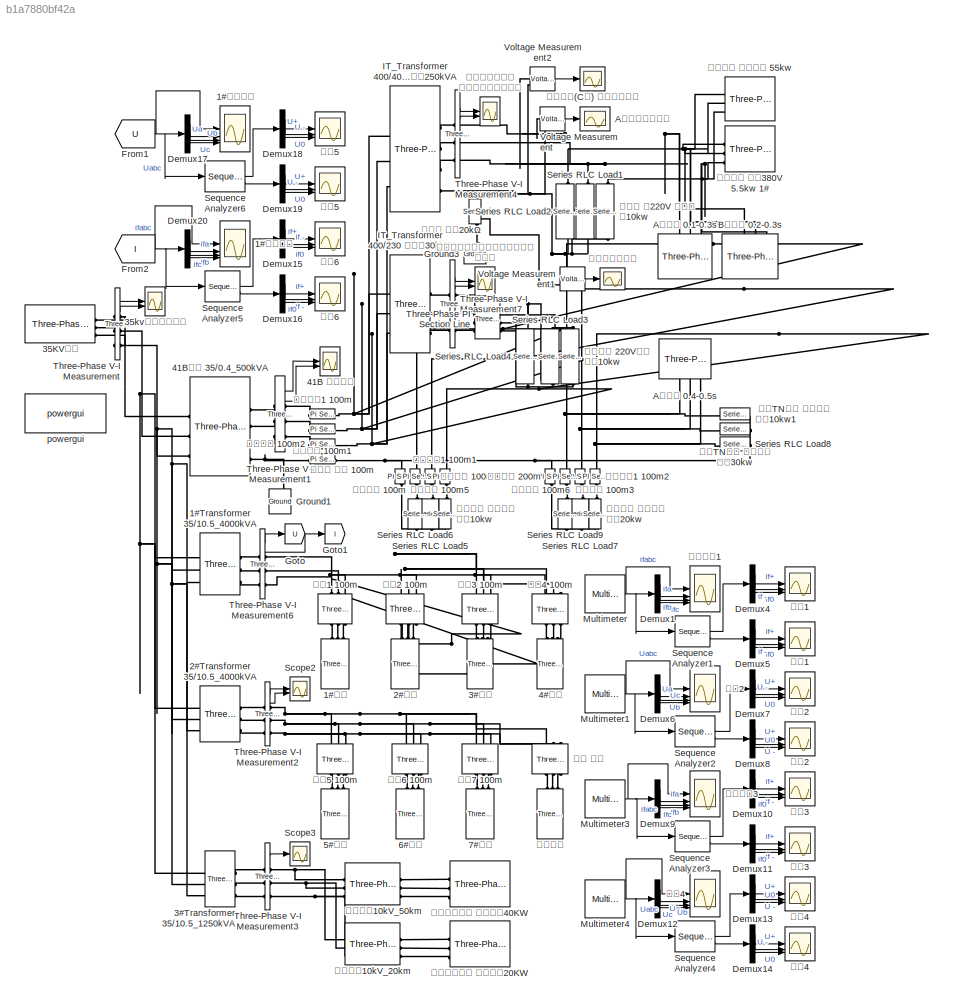
MODEL slx_b1a7880bf42a
KIND model
CONFIG AbsTol = auto
CONFIG EnableMultiTasking = off
CONFIG FixedStep = 50e-6
CONFIG MaxStep = auto
CONFIG MinStep = auto
CONFIG RelTol = 1e-3
CONFIG SampleTimeConstraint = Unconstrained
CONFIG SolverName = FixedStepAuto
CONFIG StartTime = 0.0
CONFIG StopTime = 0.55
BLOCK [Reference]     厂房TN系统 等效负载 单相10kw1  REF=spsSeriesRLCLoadLib/Series RLC Load
  AttributesFormatString = \n
  LibrarySourceBlock = sps_lib/Passives/Series RLC Load
  NameLocation = right
  SourceBlock = spsSeriesRLCLoadLib/Series RLC Load
  SourceType = Series RLC Load
BLOCK [Reference]     厂房TN系统 等效负载 单相30kw  REF=spsSeriesRLCLoadLib/Series RLC Load
  AttributesFormatString = \n
  LibrarySourceBlock = sps_lib/Passives/Series RLC Load
  NameLocation = right
  SourceBlock = spsSeriesRLCLoadLib/Series RLC Load
  SourceType = Series RLC Load
BLOCK [Reference] 1#Transformer 35//10.5_4000kVA  REF=spsThreePhaseTransformerTwoWindingsLib/Three-Phase
Transformer
(Two Windings)
  SourceBlock = spsThreePhaseTransformerTwoWindingsLib/Three-Phase\nTransformer\n(Two Windings)
  SourceType = Three-Phase Transformer (Two Windings)
BLOCK [Scope] 1#主变电压
  ActiveDisplayYMaximum = 10885.75905010345
  ActiveDisplayYMinimum = -10885.8844835699
  ContainerLayout = {"WindowBounds":[1851,25,922,1867],"gridDimensions":{"w":1,"h":4},"tileCount":4,"tileCoverage":[1,2,3,4],"columnWeights":1,"rowWeights":[0.25,0.24947916666666667,0.25,0.25052083333333336],"tileOccupancy":[{"children":{"id":"/星方式变压器处\n相间电压和电流波形"}},{"children":{"id":"/相方式电压电流"}},{"children":{"id":"/41B\n电压电流"}},{"children":{"id":"/35kv母线电压电流"}}]}  <repeated x14 — deduplicated; at blocks: 1#主变电压, 1#主变电流, A相对中性线电压, Scope3, 中性线对地电压, 幅值2, 幅值5, 幅值6, 故障电流1, 电压2, 相角2, 相角5, 相角6, 非故障相(C相) 对中性线电压>
  DataLoggingVariableName = ScopeData1
  Floating = off
  GraphicalSettings = {"Style":{"BackgroundColor":[0.12941176470588237,0.12941176470588237,0.12941176470588237],"AxesColor":[0.07058823529411765,0.07058823529411765,0.07058823529411765],"LabelsColor":[0.8509803921568627,0.8509803921568627,0.8509803921568627],"PreserveColors":false,"Visible":[true,true,true,true,true,true],"LineStyle":["-","-","-","-","-","-"],"LineWidth":[1.5,1.5,1.5,1.5,1.5,1.5],"BarWidth":[0.9,0.9,0....<+3454ch>
  LayoutDimensionsString = [4, 1]
  MultipleDisplayCache = [{"MaxYLimMag":10885.8844835699,"MaxYLimReal":10885.75905010345,"MinYLimMag":0,"MinYLimReal":-10885.8844835699,"PlotAsMagnitudePhase":false,"ShowGrid":true,"ShowLegend":true,"Title":"%<SignalLabel>","YLabel":""},{"MaxYLimMag":10885.743320815942,"MaxYLimReal":10885.743320815942,"MinYLimMag":0,"MinYLimReal":-10885.742919982329,"PlotAsMagnitudePhase":false,"ShowGrid":true,"ShowLegend":true,"Title":"%...<+460ch>
  NameLocation = top
  NumInputPorts = 4
  ScopeFrameLocation = container
  ShowLegend = on
  WasSavedAsWebScope = on
  WindowPosition = [1145.000000,366.000000,2039.000000,1348.000000,]
BLOCK [Scope] 1#主变电流
  ActiveDisplayYMaximum = 290.20954287182195
  ActiveDisplayYMinimum = -290.20750490903231
  Floating = off
  GraphicalSettings = {"Style":{"BackgroundColor":[0.12941176470588237,0.12941176470588237,0.12941176470588237],"AxesColor":[0.07058823529411765,0.07058823529411765,0.07058823529411765],"LabelsColor":[0.8509803921568627,0.8509803921568627,0.8509803921568627],"PreserveColors":false,"Visible":[true,true,true,true,true,true],"LineStyle":["-","-","-","-","-","-"],"LineWidth":[1.5,1.5,1.5,1.5,1.5,1.5],"BarWidth":[0.9,0.9,0....<+3455ch>
  LayoutDimensionsString = [4, 1]
  MultipleDisplayCache = [{"MaxYLimMag":290.20954287182195,"MaxYLimReal":290.20954287182195,"MinYLimMag":0,"MinYLimReal":-290.20750490903231,"PlotAsMagnitudePhase":false,"ShowGrid":true,"ShowLegend":true,"Title":"%<SignalLabel>","YLabel":""},{"MaxYLimMag":290.199839306447,"MaxYLimReal":290.19951035315978,"MinYLimMag":0,"MinYLimReal":-290.199839306447,"PlotAsMagnitudePhase":false,"ShowGrid":true,"ShowLegend":true,"Title":"...<+461ch>
  NameLocation = top
  NumInputPorts = 4
  ScopeFrameLocation = container
  ShowLegend = on
  WasSavedAsWebScope = on
  WindowPosition = [1145.000000,366.000000,2039.000000,1348.000000,]
BLOCK [Reference] 1#机组  REF=spsThreePhaseSeriesRLCLoadLib/Three-Phase
Series RLC Load
  AttributesFormatString = \n
  SourceBlock = spsThreePhaseSeriesRLCLoadLib/Three-Phase\nSeries RLC Load
  SourceType = Three-Phase Series RLC Load
BLOCK [Reference] 2#Transformer 35//10.5_4000kVA  REF=spsThreePhaseTransformerTwoWindingsLib/Three-Phase
Transformer
(Two Windings)
  SourceBlock = spsThreePhaseTransformerTwoWindingsLib/Three-Phase\nTransformer\n(Two Windings)
  SourceType = Three-Phase Transformer (Two Windings)
BLOCK [Reference] 2#机组  REF=spsThreePhaseSeriesRLCLoadLib/Three-Phase
Series RLC Load
  AttributesFormatString = \n
  SourceBlock = spsThreePhaseSeriesRLCLoadLib/Three-Phase\nSeries RLC Load
  SourceType = Three-Phase Series RLC Load
BLOCK [Reference] 3#Transformer 35//10.5_1250kVA  REF=spsThreePhaseTransformerTwoWindingsLib/Three-Phase
Transformer
(Two Windings)
  SourceBlock = spsThreePhaseTransformerTwoWindingsLib/Three-Phase\nTransformer\n(Two Windings)
  SourceType = Three-Phase Transformer (Two Windings)
BLOCK [Reference] 3#机组  REF=spsThreePhaseSeriesRLCLoadLib/Three-Phase
Series RLC Load
  AttributesFormatString = \n
  SourceBlock = spsThreePhaseSeriesRLCLoadLib/Three-Phase\nSeries RLC Load
  SourceType = Three-Phase Series RLC Load
BLOCK [Reference] 35KV电源  REF=spsThreePhaseSourceLib/Three-Phase Source
  SourceBlock = spsThreePhaseSourceLib/Three-Phase Source
  SourceType = Three-Phase Source
BLOCK [Scope] 35kv母线电压电流
  ActiveDisplayYMaximum = 35707.041687054967
  ActiveDisplayYMinimum = -35706.846494267083
  ContainerLayout = {"WindowBounds":[1557,106,1948,1863],"gridDimensions":{"w":3,"h":2},"tileCount":6,"tileCoverage":[[1,2,3],[4,5,6]],"columnWeights":[0.33333333333333331,0.33333333333333331,0.33333333333333331],"rowWeights":[0.5,0.5],"tileOccupancy":[{"children":{"id":"/故障电流3"}},{"children":{"id":"/幅值3"}},{"children":{"id":"/相角3"}},{"children":{"id":"/电压4"}},{"children":{"id":"/幅值4"}},{"children":[{"id":"/相角4"},{"i...<+14ch>  <repeated x12 — deduplicated; at blocks: 35kv母线电压电流, 41B 电压电流, 幅值1, 幅值3, 幅值4, 故障电流3, 星方式变压器处 相间电压和电流波形, 电压4, 相方式变压器处相对地电压和电流波形, 相角1, 相角3, 相角4>
  DataLoggingVariableName = ScopeData6
  Floating = off
  GraphicalSettings = {"Style":{"BackgroundColor":[0.12941176470588237,0.12941176470588237,0.12941176470588237],"AxesColor":[0.07058823529411765,0.07058823529411765,0.07058823529411765],"LabelsColor":[0.8509803921568627,0.8509803921568627,0.8509803921568627],"PreserveColors":false,"Visible":[true,true,true,true,true,true],"LineStyle":["-","-","-","-","-","-"],"LineWidth":[1.5,1.5,1.5,1.5,1.5,1.5],"BarWidth":[0.9,0.9,0....<+3007ch>
  LayoutDimensionsString = [2, 1]
  MultipleDisplayCache = [{"MaxYLimMag":35707.041687054967,"MaxYLimReal":35707.041687054967,"MinYLimMag":0,"MinYLimReal":-35706.846494267083,"PlotAsMagnitudePhase":false,"ShowGrid":true,"ShowLegend":false,"Title":"%<SignalLabel>","YLabel":""},{"MaxYLimMag":217.316647966304,"MaxYLimReal":217.316647966304,"MinYLimMag":0,"MinYLimReal":-201.72874583244709,"PlotAsMagnitudePhase":false,"ShowGrid":true,"ShowLegend":false,"Title"...<+31ch>
  NumInputPorts = 2
  ScopeFrameLocation = container
  WasSavedAsWebScope = on
  WindowPosition = [1851.000000,186.000000,1039.000000,1922.000000,]
BLOCK [Reference] 4#机组  REF=spsThreePhaseSeriesRLCLoadLib/Three-Phase
Series RLC Load
  AttributesFormatString = \n
  SourceBlock = spsThreePhaseSeriesRLCLoadLib/Three-Phase\nSeries RLC Load
  SourceType = Three-Phase Series RLC Load
BLOCK [Scope] 41B 电压电流
  ActiveDisplayYMaximum = 693.42851734573628
  ActiveDisplayYMinimum = -693.505234778138
  DataLoggingVariableName = ScopeData2
  Floating = off
  GraphicalSettings = {"Style":{"BackgroundColor":[0.12941176470588237,0.12941176470588237,0.12941176470588237],"AxesColor":[0.07058823529411765,0.07058823529411765,0.07058823529411765],"LabelsColor":[0.8509803921568627,0.8509803921568627,0.8509803921568627],"PreserveColors":false,"Visible":[true,true,true,true,true,true],"LineStyle":["-","-","-","-","-","-"],"LineWidth":[1.5,1.5,1.5,1.5,1.5,1.5],"BarWidth":[0.9,0.9,0....<+3014ch>
  LayoutDimensionsString = [2, 1]
  MultipleDisplayCache = [{"MaxYLimMag":693.505234778138,"MaxYLimReal":693.42851734573628,"MinYLimMag":0,"MinYLimReal":-693.505234778138,"PlotAsMagnitudePhase":false,"ShowGrid":true,"ShowLegend":true,"Title":"%<SignalLabel>","YLabel":""},{"MaxYLimMag":8410.7812594967127,"MaxYLimReal":8410.7812594967127,"MinYLimMag":0,"MinYLimReal":-6603.978936766599,"PlotAsMagnitudePhase":false,"ShowGrid":true,"ShowLegend":true,"Title":"%...<+28ch>
  NumInputPorts = 2
  ScopeFrameLocation = container
  ShowLegend = on
  WasSavedAsWebScope = on
  WindowPosition = [1851.000000,186.000000,1039.000000,1922.000000,]
BLOCK [Reference] 41B所变 35//0.4_500kVA  REF=spsThreePhaseTransformerTwoWindingsLib/Three-Phase
Transformer
(Two Windings)
  SourceBlock = spsThreePhaseTransformerTwoWindingsLib/Three-Phase\nTransformer\n(Two Windings)
  SourceType = Three-Phase Transformer (Two Windings)
BLOCK [Reference] 5#机组  REF=spsThreePhaseSeriesRLCLoadLib/Three-Phase
Series RLC Load
  AttributesFormatString = \n
  SourceBlock = spsThreePhaseSeriesRLCLoadLib/Three-Phase\nSeries RLC Load
  SourceType = Three-Phase Series RLC Load
BLOCK [Reference] 6#机组  REF=spsThreePhaseSeriesRLCLoadLib/Three-Phase
Series RLC Load
  AttributesFormatString = \n
  SourceBlock = spsThreePhaseSeriesRLCLoadLib/Three-Phase\nSeries RLC Load
  SourceType = Three-Phase Series RLC Load
BLOCK [Reference] 7#机组  REF=spsThreePhaseSeriesRLCLoadLib/Three-Phase
Series RLC Load
  AttributesFormatString = \n
  SourceBlock = spsThreePhaseSeriesRLCLoadLib/Three-Phase\nSeries RLC Load
  SourceType = Three-Phase Series RLC Load
BLOCK [Scope] A相对中性线电压
  ActiveDisplayYMaximum = 1
  ActiveDisplayYMinimum = -1
  DataLoggingVariableName = ScopeData7
  Floating = off
  GraphicalSettings = {"Style":{"BackgroundColor":[0.12941176470588237,0.12941176470588237,0.12941176470588237],"AxesColor":[0.07058823529411765,0.07058823529411765,0.07058823529411765],"LabelsColor":[0.8509803921568627,0.8509803921568627,0.8509803921568627],"PreserveColors":false,"Visible":[true],"LineStyle":["-"],"LineWidth":[1.5],"BarWidth":[0.9],"LineColor":["auto"],"LineFaceAlpha":[1],"LineEdgeAlpha":[1],"Marker":...<+1901ch>
  MultipleDisplayCache = [{"MaxYLimMag":1,"MaxYLimReal":1,"MinYLimMag":0,"MinYLimReal":-1,"PlotAsMagnitudePhase":false,"ShowGrid":true,"ShowLegend":false,"Title":"%<SignalLabel>","YLabel":""}]
  NameLocation = top
  NumInputPorts = 1
  ScopeFrameLocation = container
  WasSavedAsWebScope = on
  WindowPosition = [1747.000000,378.000000,1583.000000,1348.000000,]
BLOCK [Reference] A相接地 0.1-0.3s  REF=spsThreePhaseFaultLib/Three-Phase Fault
  SourceBlock = spsThreePhaseFaultLib/Three-Phase Fault
  SourceType = Three-Phase Fault
BLOCK [Reference] A相接地 0.4-0.5s  REF=spsThreePhaseFaultLib/Three-Phase Fault
  NameLocation = right
  SourceBlock = spsThreePhaseFaultLib/Three-Phase Fault
  SourceType = Three-Phase Fault
BLOCK [Reference] B相接地 0.2-0.3s  REF=spsThreePhaseFaultLib/Three-Phase Fault
  SourceBlock = spsThreePhaseFaultLib/Three-Phase Fault
  SourceType = Three-Phase Fault
BLOCK [Demux] Demux1
  Outputs = 3
BLOCK [Demux] Demux10
  Outputs = 3
BLOCK [Demux] Demux11
  Outputs = 3
BLOCK [Demux] Demux12
  Outputs = 3
BLOCK [Demux] Demux13
  Outputs = 3
BLOCK [Demux] Demux14
  Outputs = 3
BLOCK [Demux] Demux15
  Outputs = 3
BLOCK [Demux] Demux16
  Outputs = 3
BLOCK [Demux] Demux17
  Outputs = 3
BLOCK [Demux] Demux18
  Outputs = 3
BLOCK [Demux] Demux19
  Outputs = 3
BLOCK [Demux] Demux20
  Outputs = 3
BLOCK [Demux] Demux4
  Outputs = 3
BLOCK [Demux] Demux5
  Outputs = 3
BLOCK [Demux] Demux6
  Outputs = 3
BLOCK [Demux] Demux7
  Outputs = 3
BLOCK [Demux] Demux8
  Outputs = 3
BLOCK [Demux] Demux9
  Outputs = 3
BLOCK [From] From1
  GotoTag = U
BLOCK [From] From2
  GotoTag = I
BLOCK [Goto] Goto
  GotoTag = U
BLOCK [Goto] Goto1
  GotoTag = I
BLOCK [Reference] Ground1  REF=spsGroundLib/Ground
  LibrarySourceBlock = sps_lib/Utilities/Ground
  NameLocation = right
  SourceBlock = spsGroundLib/Ground
  SourceType = Ground
BLOCK [Reference] Ground3  REF=spsGroundLib/Ground
  LibrarySourceBlock = sps_lib/Utilities/Ground
  NameLocation = right
  SourceBlock = spsGroundLib/Ground
  SourceType = Ground
BLOCK [Reference] IT_Transformer 400//230 相方式30kVA  REF=spsThreePhaseTransformerTwoWindingsLib/Three-Phase
Transformer
(Two Windings)
  SourceBlock = spsThreePhaseTransformerTwoWindingsLib/Three-Phase\nTransformer\n(Two Windings)
  SourceType = Three-Phase Transformer (Two Windings)
BLOCK [Reference] IT_Transformer 400//400 星方式250kVA  REF=spsThreePhaseTransformerTwoWindingsLib/Three-Phase
Transformer
(Two Windings)
  SourceBlock = spsThreePhaseTransformerTwoWindingsLib/Three-Phase\nTransformer\n(Two Windings)
  SourceType = Three-Phase Transformer (Two Windings)
BLOCK [Reference] Multimeter  REF=spsMultimeterLib/Multimeter
  LibrarySourceBlock = sps_lib/Sensors and Measurements/Multimeter
  SourceBlock = spsMultimeterLib/Multimeter
  SourceType = Multimeter
BLOCK [Reference] Multimeter1  REF=spsMultimeterLib/Multimeter
  LibrarySourceBlock = sps_lib/Sensors and Measurements/Multimeter
  SourceBlock = spsMultimeterLib/Multimeter
  SourceType = Multimeter
BLOCK [Reference] Multimeter3  REF=spsMultimeterLib/Multimeter
  LibrarySourceBlock = sps_lib/Sensors and Measurements/Multimeter
  SourceBlock = spsMultimeterLib/Multimeter
  SourceType = Multimeter
BLOCK [Reference] Multimeter4  REF=spsMultimeterLib/Multimeter
  LibrarySourceBlock = sps_lib/Sensors and Measurements/Multimeter
  SourceBlock = spsMultimeterLib/Multimeter
  SourceType = Multimeter
BLOCK [Scope] Scope2
  ActiveDisplayYMaximum = 10885.759050087665
  ActiveDisplayYMinimum = -10885.884483600445
  DataLoggingVariableName = ScopeData4
  Floating = off
  GraphicalSettings = {"Style":{"BackgroundColor":[0.12941176470588237,0.12941176470588237,0.12941176470588237],"AxesColor":[0.07058823529411765,0.07058823529411765,0.07058823529411765],"LabelsColor":[0.8509803921568627,0.8509803921568627,0.8509803921568627],"PreserveColors":false,"Visible":[true,true,true,true,true,true],"LineStyle":["-","-","-","-","-","-"],"LineWidth":[1.5,1.5,1.5,1.5,1.5,1.5],"BarWidth":[0.9,0.9,0....<+2872ch>
  LayoutDimensionsString = [2, 1]
  MultipleDisplayCache = [{"MaxYLimMag":10885.884483600445,"MaxYLimReal":10885.759050087665,"MinYLimMag":0,"MinYLimReal":-10885.884483600445,"PlotAsMagnitudePhase":false,"ShowGrid":true,"ShowLegend":false,"Title":"%<SignalLabel>","YLabel":""},{"MaxYLimMag":290.2095428718269,"MaxYLimReal":290.2095428718269,"MinYLimMag":0,"MinYLimReal":-290.207504909037,"PlotAsMagnitudePhase":false,"ShowGrid":true,"ShowLegend":false,"Title"...<+31ch>
  NumInputPorts = 2
  ScopeFrameLocation = window
  WasSavedAsWebScope = on
  WindowPosition = [680.000000,330.000000,2386.000000,1433.000000,]
BLOCK [Scope] Scope3
  ActiveDisplayYMaximum = 10726.597579018544
  ActiveDisplayYMinimum = -10727.159391884898
  DataLoggingVariableName = ScopeData5
  Floating = off
  GraphicalSettings = {"Style":{"BackgroundColor":[0.12941176470588237,0.12941176470588237,0.12941176470588237],"AxesColor":[0.07058823529411765,0.07058823529411765,0.07058823529411765],"LabelsColor":[0.8509803921568627,0.8509803921568627,0.8509803921568627],"PreserveColors":false,"Visible":[true,true,true],"LineStyle":["-","-","-"],"LineWidth":[1.5,1.5,1.5],"BarWidth":[0.9,0.9,0.9],"LineColor":["auto","auto","auto"],"...<+2275ch>
  MultipleDisplayCache = [{"MaxYLimMag":10727.159391884898,"MaxYLimReal":10726.597579018544,"MinYLimMag":0,"MinYLimReal":-10727.159391884898,"PlotAsMagnitudePhase":false,"ShowGrid":true,"ShowLegend":false,"Title":"%<SignalLabel>","YLabel":""}]
  NumInputPorts = 1
  ScopeFrameLocation = container
  WasSavedAsWebScope = on
  WindowPosition = [447 510 1862 420]
BLOCK [Reference] Sequence Analyzer1  REF=spsSequenceAnalyzerLib/Sequence Analyzer
  LibrarySourceBlock = sps_lib/Sensors and Measurements/Sequence Analyzer
  SourceBlock = spsSequenceAnalyzerLib/Sequence Analyzer
  SourceType = Sequence Analyzer
BLOCK [Reference] Sequence Analyzer2  REF=spsSequenceAnalyzerLib/Sequence Analyzer
  LibrarySourceBlock = sps_lib/Sensors and Measurements/Sequence Analyzer
  SourceBlock = spsSequenceAnalyzerLib/Sequence Analyzer
  SourceType = Sequence Analyzer
BLOCK [Reference] Sequence Analyzer3  REF=spsSequenceAnalyzerLib/Sequence Analyzer
  LibrarySourceBlock = sps_lib/Sensors and Measurements/Sequence Analyzer
  SourceBlock = spsSequenceAnalyzerLib/Sequence Analyzer
  SourceType = Sequence Analyzer
BLOCK [Reference] Sequence Analyzer4  REF=spsSequenceAnalyzerLib/Sequence Analyzer
  LibrarySourceBlock = sps_lib/Sensors and Measurements/Sequence Analyzer
  SourceBlock = spsSequenceAnalyzerLib/Sequence Analyzer
  SourceType = Sequence Analyzer
BLOCK [Reference] Sequence Analyzer5  REF=spsSequenceAnalyzerLib/Sequence Analyzer
  LibrarySourceBlock = sps_lib/Sensors and Measurements/Sequence Analyzer
  SourceBlock = spsSequenceAnalyzerLib/Sequence Analyzer
  SourceType = Sequence Analyzer
BLOCK [Reference] Sequence Analyzer6  REF=spsSequenceAnalyzerLib/Sequence Analyzer
  LibrarySourceBlock = sps_lib/Sensors and Measurements/Sequence Analyzer
  SourceBlock = spsSequenceAnalyzerLib/Sequence Analyzer
  SourceType = Sequence Analyzer
BLOCK [Reference] Series RLC Load1  REF=spsSeriesRLCLoadLib/Series RLC Load
  AttributesFormatString = \n
  LibrarySourceBlock = sps_lib/Passives/Series RLC Load
  NameLocation = left
  SourceBlock = spsSeriesRLCLoadLib/Series RLC Load
  SourceType = Series RLC Load
BLOCK [Reference] Series RLC Load2  REF=spsSeriesRLCLoadLib/Series RLC Load
  AttributesFormatString = \n
  LibrarySourceBlock = sps_lib/Passives/Series RLC Load
  NameLocation = left
  SourceBlock = spsSeriesRLCLoadLib/Series RLC Load
  SourceType = Series RLC Load
BLOCK [Reference] Series RLC Load3  REF=spsSeriesRLCLoadLib/Series RLC Load
  AttributesFormatString = \n
  LibrarySourceBlock = sps_lib/Passives/Series RLC Load
  NameLocation = left
  SourceBlock = spsSeriesRLCLoadLib/Series RLC Load
  SourceType = Series RLC Load
BLOCK [Reference] Series RLC Load4  REF=spsSeriesRLCLoadLib/Series RLC Load
  AttributesFormatString = \n
  LibrarySourceBlock = sps_lib/Passives/Series RLC Load
  NameLocation = left
  SourceBlock = spsSeriesRLCLoadLib/Series RLC Load
  SourceType = Series RLC Load
BLOCK [Reference] Series RLC Load5  REF=spsSeriesRLCLoadLib/Series RLC Load
  AttributesFormatString = \n
  LibrarySourceBlock = sps_lib/Passives/Series RLC Load
  NameLocation = left
  SourceBlock = spsSeriesRLCLoadLib/Series RLC Load
  SourceType = Series RLC Load
BLOCK [Reference] Series RLC Load6  REF=spsSeriesRLCLoadLib/Series RLC Load
  AttributesFormatString = \n
  LibrarySourceBlock = sps_lib/Passives/Series RLC Load
  NameLocation = left
  SourceBlock = spsSeriesRLCLoadLib/Series RLC Load
  SourceType = Series RLC Load
BLOCK [Reference] Series RLC Load7  REF=spsSeriesRLCLoadLib/Series RLC Load
  AttributesFormatString = \n
  LibrarySourceBlock = sps_lib/Passives/Series RLC Load
  NameLocation = left
  SourceBlock = spsSeriesRLCLoadLib/Series RLC Load
  SourceType = Series RLC Load
BLOCK [Reference] Series RLC Load8  REF=spsSeriesRLCLoadLib/Series RLC Load
  AttributesFormatString = \n
  LibrarySourceBlock = sps_lib/Passives/Series RLC Load
  SourceBlock = spsSeriesRLCLoadLib/Series RLC Load
  SourceType = Series RLC Load
BLOCK [Reference] Series RLC Load9  REF=spsSeriesRLCLoadLib/Series RLC Load
  AttributesFormatString = \n
  LibrarySourceBlock = sps_lib/Passives/Series RLC Load
  NameLocation = left
  SourceBlock = spsSeriesRLCLoadLib/Series RLC Load
  SourceType = Series RLC Load
BLOCK [Reference] Three-Phase PI Section Line  REF=spsThreePhasePISectionLineLib/Three-Phase
PI Section Line
  AttributesFormatString = \n
  LibrarySourceBlock = sps_lib/Power Grid Elements/Three-Phase\nPI Section Line
  SourceBlock = spsThreePhasePISectionLineLib/Three-Phase\nPI Section Line
  SourceType = Three-Phase PI Section Line
BLOCK [Reference] Three-Phase V-I Measurement  REF=spsThreePhaseVIMeasurementLib/Three-Phase
V-I Measurement
  SourceBlock = spsThreePhaseVIMeasurementLib/Three-Phase\nV-I Measurement
  SourceType = Three-Phase VI Measurement
BLOCK [Reference] Three-Phase V-I Measurement1  REF=spsThreePhaseVIMeasurementLib/Three-Phase
V-I Measurement
  SourceBlock = spsThreePhaseVIMeasurementLib/Three-Phase\nV-I Measurement
  SourceType = Three-Phase VI Measurement
BLOCK [Reference] Three-Phase V-I Measurement2  REF=spsThreePhaseVIMeasurementLib/Three-Phase
V-I Measurement
  SourceBlock = spsThreePhaseVIMeasurementLib/Three-Phase\nV-I Measurement
  SourceType = Three-Phase VI Measurement
BLOCK [Reference] Three-Phase V-I Measurement3  REF=spsThreePhaseVIMeasurementLib/Three-Phase
V-I Measurement
  SourceBlock = spsThreePhaseVIMeasurementLib/Three-Phase\nV-I Measurement
  SourceType = Three-Phase VI Measurement
BLOCK [Reference] Three-Phase V-I Measurement4  REF=spsThreePhaseVIMeasurementLib/Three-Phase
V-I Measurement
  NameLocation = right
  SourceBlock = spsThreePhaseVIMeasurementLib/Three-Phase\nV-I Measurement
  SourceType = Three-Phase VI Measurement
BLOCK [Reference] Three-Phase V-I Measurement6  REF=spsThreePhaseVIMeasurementLib/Three-Phase
V-I Measurement
  SourceBlock = spsThreePhaseVIMeasurementLib/Three-Phase\nV-I Measurement
  SourceType = Three-Phase VI Measurement
BLOCK [Reference] Three-Phase V-I Measurement7  REF=spsThreePhaseVIMeasurementLib/Three-Phase
V-I Measurement
  SourceBlock = spsThreePhaseVIMeasurementLib/Three-Phase\nV-I Measurement
  SourceType = Three-Phase VI Measurement
BLOCK [Reference] Voltage Measurement  REF=spsVoltageMeasurementLib/Voltage Measurement
  LibrarySourceBlock = sps_lib/Sensors and Measurements/Voltage Measurement
  SourceBlock = spsVoltageMeasurementLib/Voltage Measurement
  SourceType = Voltage Measurement
  UserDataPersistent = on
BLOCK [Reference] Voltage Measurement1  REF=spsVoltageMeasurementLib/Voltage Measurement
  LibrarySourceBlock = sps_lib/Sensors and Measurements/Voltage Measurement
  SourceBlock = spsVoltageMeasurementLib/Voltage Measurement
  SourceType = Voltage Measurement
  UserDataPersistent = on
BLOCK [Reference] Voltage Measurement2  REF=spsVoltageMeasurementLib/Voltage Measurement
  LibrarySourceBlock = sps_lib/Sensors and Measurements/Voltage Measurement
  SourceBlock = spsVoltageMeasurementLib/Voltage Measurement
  SourceType = Voltage Measurement
  UserDataPersistent = on
BLOCK [Reference] powergui  REF=spspowerguiLib/powergui
  Priority = 1
  SourceBlock = spspowerguiLib/powergui
  SourceType = PSB option menu block
BLOCK [Scope] 中性线对地电压
  ActiveDisplayYMaximum = 386.53827874690307
  ActiveDisplayYMinimum = -386.53820546977795
  DataLoggingVariableName = ScopeData8
  Floating = off
  GraphicalSettings = {"Style":{"BackgroundColor":[0.12941176470588237,0.12941176470588237,0.12941176470588237],"AxesColor":[0.07058823529411765,0.07058823529411765,0.07058823529411765],"LabelsColor":[0.8509803921568627,0.8509803921568627,0.8509803921568627],"PreserveColors":false,"Visible":[true],"LineStyle":["-"],"LineWidth":[1.5],"BarWidth":[0.9],"LineColor":["auto"],"LineFaceAlpha":[1],"LineEdgeAlpha":[1],"Marker":...<+1902ch>
  MultipleDisplayCache = [{"MaxYLimMag":386.53827874690307,"MaxYLimReal":386.53827874690307,"MinYLimMag":0,"MinYLimReal":-386.53820546977795,"PlotAsMagnitudePhase":false,"ShowGrid":true,"ShowLegend":false,"Title":"%<SignalLabel>","YLabel":""}]
  NumInputPorts = 1
  ScopeFrameLocation = container
  WasSavedAsWebScope = on
  WindowPosition = [1747.000000,378.000000,1583.000000,1348.000000,]
BLOCK [Reference] 其他三相 设备等效 55kw  REF=spsThreePhaseSeriesRLCLoadLib/Three-Phase
Series RLC Load
  AttributesFormatString = \n
  NameLocation = right
  SourceBlock = spsThreePhaseSeriesRLCLoadLib/Three-Phase\nSeries RLC Load
  SourceType = Three-Phase Series RLC Load
BLOCK [Reference] 到厂房 线路 100m  REF=spsPiSectionLineLib/Pi Section Line
  AttributesFormatString = \n
  LibrarySourceBlock = sps_lib/Power Grid Elements/Pi Section Line
  SourceBlock = spsPiSectionLineLib/Pi Section Line
  SourceType = Pi Section Line
BLOCK [Reference] 北办公楼 等效负载 每相20kw  REF=spsSeriesRLCLoadLib/Series RLC Load
  AttributesFormatString = \n
  LibrarySourceBlock = sps_lib/Passives/Series RLC Load
  NameLocation = right
  SourceBlock = spsSeriesRLCLoadLib/Series RLC Load
  SourceType = Series RLC Load
BLOCK [Reference] 北楼线路 200m  REF=spsPiSectionLineLib/Pi Section Line
  AttributesFormatString = \n
  LibrarySourceBlock = sps_lib/Power Grid Elements/Pi Section Line
  NameLocation = left
  SourceBlock = spsPiSectionLineLib/Pi Section Line
  SourceType = Pi Section Line
BLOCK [Reference] 南办公楼 等效负载 每相10kw  REF=spsSeriesRLCLoadLib/Series RLC Load
  AttributesFormatString = \n
  LibrarySourceBlock = sps_lib/Passives/Series RLC Load
  NameLocation = right
  SourceBlock = spsSeriesRLCLoadLib/Series RLC Load
  SourceType = Series RLC Load
BLOCK [Reference] 南楼线路 100m  REF=spsPiSectionLineLib/Pi Section Line
  AttributesFormatString = \n
  LibrarySourceBlock = sps_lib/Power Grid Elements/Pi Section Line
  NameLocation = left
  SourceBlock = spsPiSectionLineLib/Pi Section Line
  SourceType = Pi Section Line
BLOCK [Reference] 增容 线路  REF=spsThreePhasePISectionLineLib/Three-Phase
PI Section Line
  AttributesFormatString = \n
  NameLocation = left
  SourceBlock = spsThreePhasePISectionLineLib/Three-Phase\nPI Section Line
  SourceType = Three-Phase PI Section Line
BLOCK [Reference] 增容机组  REF=spsThreePhaseSeriesRLCLoadLib/Three-Phase
Series RLC Load
  AttributesFormatString = \n
  SourceBlock = spsThreePhaseSeriesRLCLoadLib/Three-Phase\nSeries RLC Load
  SourceType = Three-Phase Series RLC Load
BLOCK [Scope] 幅值1
  ActiveDisplayYMaximum = 0.024274045114523017
  ActiveDisplayYMinimum = -0.00269711612383589
  DataLoggingVariableName = ScopeData11
  Floating = off
  GraphicalSettings = {"Style":{"BackgroundColor":[0.12941176470588237,0.12941176470588237,0.12941176470588237],"AxesColor":[0.07058823529411765,0.07058823529411765,0.07058823529411765],"LabelsColor":[0.8509803921568627,0.8509803921568627,0.8509803921568627],"PreserveColors":false,"Visible":[true,true,true],"LineStyle":["-","-","-"],"LineWidth":[1.5,1.5,1.5],"BarWidth":[0.9,0.9,0.9],"LineColor":["auto","auto","auto"],"...<+2813ch>
  LayoutDimensionsString = [3,1]
  MultipleDisplayCache = [{"MaxYLimMag":0.024274045114523017,"MaxYLimReal":0.024274045114523017,"MinYLimMag":0,"MinYLimReal":-0.00269711612383589,"PlotAsMagnitudePhase":false,"ShowGrid":true,"ShowLegend":true,"Title":"%<SignalLabel>","YLabel":""},{"MaxYLimMag":0.024274045114523017,"MaxYLimReal":0.024274045114523017,"MinYLimMag":0,"MinYLimReal":-0.00269711612383589,"PlotAsMagnitudePhase":false,"ShowGrid":true,"ShowLegend":...<+264ch>
  NumInputPorts = 3
  ScopeFrameLocation = container
  ShowLegend = on
  Visible = on
  WasSavedAsWebScope = on
  WindowPosition = [1558.000000,192.000000,1948.000000,1835.000000,]
BLOCK [Scope] 幅值2
  ActiveDisplayYMaximum = 347.88788042742931
  ActiveDisplayYMinimum = -37.543097825269918
  DataLoggingVariableName = ScopeData14
  Floating = off
  GraphicalSettings = {"Style":{"BackgroundColor":[0.12941176470588237,0.12941176470588237,0.12941176470588237],"AxesColor":[0.07058823529411765,0.07058823529411765,0.07058823529411765],"LabelsColor":[0.8509803921568627,0.8509803921568627,0.8509803921568627],"PreserveColors":false,"Visible":[true,true,true],"LineStyle":["-","-","-"],"LineWidth":[1.5,1.5,1.5],"BarWidth":[0.9,0.9,0.9],"LineColor":["auto","auto","auto"],"...<+2816ch>
  LayoutDimensionsString = [3, 1]
  MultipleDisplayCache = [{"MaxYLimMag":347.88788042742931,"MaxYLimReal":347.88788042742931,"MinYLimMag":0,"MinYLimReal":-37.543097825269918,"PlotAsMagnitudePhase":false,"ShowGrid":true,"ShowLegend":true,"Title":"%<SignalLabel>","YLabel":""},{"MaxYLimMag":171.58729441863568,"MaxYLimReal":171.58729441863568,"MinYLimMag":0,"MinYLimReal":-19.06525493540396,"PlotAsMagnitudePhase":false,"ShowGrid":true,"ShowLegend":true,"Title...<+247ch>
  NumInputPorts = 3
  ScopeFrameLocation = container
  ShowLegend = on
  WasSavedAsWebScope = on
  WindowPosition = [1679.000000,661.000000,1436.000000,1112.000000,]
BLOCK [Scope] 幅值3
  ActiveDisplayYMaximum = 2138.2072296888946
  ActiveDisplayYMinimum = -237.57858107654377
  DataLoggingVariableName = ScopeData19
  Floating = off
  GraphicalSettings = {"Style":{"BackgroundColor":[0.12941176470588237,0.12941176470588237,0.12941176470588237],"AxesColor":[0.07058823529411765,0.07058823529411765,0.07058823529411765],"LabelsColor":[0.8509803921568627,0.8509803921568627,0.8509803921568627],"PreserveColors":false,"Visible":[true,true,true],"LineStyle":["-","-","-"],"LineWidth":[1.5,1.5,1.5],"BarWidth":[0.9,0.9,0.9],"LineColor":["auto","auto","auto"],"...<+2825ch>
  LayoutDimensionsString = [3, 1]
  MultipleDisplayCache = [{"MaxYLimMag":2138.2072296888946,"MaxYLimReal":2138.2072296888946,"MinYLimMag":0,"MinYLimReal":-237.57858107654377,"PlotAsMagnitudePhase":false,"ShowGrid":true,"ShowLegend":true,"Title":"%<SignalLabel>","YLabel":""},{"MaxYLimMag":2138.2072296888946,"MaxYLimReal":2138.2072296888946,"MinYLimMag":0,"MinYLimReal":-237.57858107654377,"PlotAsMagnitudePhase":false,"ShowGrid":true,"ShowLegend":true,"Titl...<+249ch>
  NumInputPorts = 3
  ScopeFrameLocation = container
  ShowLegend = on
  Visible = on
  WasSavedAsWebScope = on
  WindowPosition = [1558.000000,192.000000,1948.000000,1835.000000,]
BLOCK [Scope] 幅值4
  ActiveDisplayYMaximum = 364.04306442821229
  ActiveDisplayYMinimum = -39.338118269801356
  DataLoggingVariableName = ScopeData20
  Floating = off
  GraphicalSettings = {"Style":{"BackgroundColor":[0.12941176470588237,0.12941176470588237,0.12941176470588237],"AxesColor":[0.07058823529411765,0.07058823529411765,0.07058823529411765],"LabelsColor":[0.8509803921568627,0.8509803921568627,0.8509803921568627],"PreserveColors":false,"Visible":[true,true,true],"LineStyle":["-","-","-"],"LineWidth":[1.5,1.5,1.5],"BarWidth":[0.9,0.9,0.9],"LineColor":["auto","auto","auto"],"...<+2820ch>
  LayoutDimensionsString = [3, 1]
  MultipleDisplayCache = [{"MaxYLimMag":364.04306442821229,"MaxYLimReal":364.04306442821229,"MinYLimMag":0,"MinYLimReal":-39.338118269801356,"PlotAsMagnitudePhase":false,"ShowGrid":true,"ShowLegend":true,"Title":"%<SignalLabel>","YLabel":""},{"MaxYLimMag":117.94622377331078,"MaxYLimReal":117.94622377331078,"MinYLimMag":0,"MinYLimReal":-13.105135974812304,"PlotAsMagnitudePhase":false,"ShowGrid":true,"ShowLegend":true,"Titl...<+249ch>
  NumInputPorts = 3
  ScopeFrameLocation = container
  ShowLegend = on
  Visible = on
  WasSavedAsWebScope = on
  WindowPosition = [1558.000000,192.000000,1948.000000,1835.000000,]
BLOCK [Scope] 幅值5
  ActiveDisplayYMaximum = 9796.7054024859353
  ActiveDisplayYMinimum = -1087.411711387326
  DataLoggingVariableName = ScopeData24
  Floating = off
  GraphicalSettings = {"Style":{"BackgroundColor":[0.12941176470588237,0.12941176470588237,0.12941176470588237],"AxesColor":[0.07058823529411765,0.07058823529411765,0.07058823529411765],"LabelsColor":[0.8509803921568627,0.8509803921568627,0.8509803921568627],"PreserveColors":false,"Visible":[true,true,true],"LineStyle":["-","-","-"],"LineWidth":[1.5,1.5,1.5],"BarWidth":[0.9,0.9,0.9],"LineColor":["auto","auto","auto"],"...<+2833ch>
  LayoutDimensionsString = [3, 1]
  MultipleDisplayCache = [{"MaxYLimMag":9796.7054024859353,"MaxYLimReal":9796.7054024859353,"MinYLimMag":0,"MinYLimReal":-1087.411711387326,"PlotAsMagnitudePhase":false,"ShowGrid":true,"ShowLegend":true,"Title":"%<SignalLabel>","YLabel":""},{"MaxYLimMag":0.75401356046653956,"MaxYLimReal":0.75401356046653956,"MinYLimMag":0,"MinYLimReal":-0.083779284496282136,"PlotAsMagnitudePhase":false,"ShowGrid":true,"ShowLegend":true,"T...<+262ch>
  NumInputPorts = 3
  ScopeFrameLocation = container
  ShowLegend = on
  WasSavedAsWebScope = on
  WindowPosition = [1145.000000,366.000000,2039.000000,1348.000000,]
BLOCK [Scope] 幅值6
  ActiveDisplayYMaximum = 261.05053723995428
  ActiveDisplayYMinimum = -27.894504137772689
  DataLoggingVariableName = ScopeData23
  Floating = off
  GraphicalSettings = {"Style":{"BackgroundColor":[0.12941176470588237,0.12941176470588237,0.12941176470588237],"AxesColor":[0.07058823529411765,0.07058823529411765,0.07058823529411765],"LabelsColor":[0.8509803921568627,0.8509803921568627,0.8509803921568627],"PreserveColors":false,"Visible":[true,true,true],"LineStyle":["-","-","-"],"LineWidth":[1.5,1.5,1.5],"BarWidth":[0.9,0.9,0.9],"LineColor":["auto","auto","auto"],"...<+2845ch>
  LayoutDimensionsString = [3, 1]
  MultipleDisplayCache = [{"MaxYLimMag":261.05053723995428,"MaxYLimReal":261.05053723995428,"MinYLimMag":0,"MinYLimReal":-27.894504137772689,"PlotAsMagnitudePhase":false,"ShowGrid":true,"ShowLegend":true,"Title":"%<SignalLabel>","YLabel":""},{"MaxYLimMag":0.019893970501245341,"MaxYLimReal":0.019893970501245341,"MinYLimMag":0,"MinYLimReal":-0.0022104411668050169,"PlotAsMagnitudePhase":false,"ShowGrid":true,"ShowLegend":tru...<+268ch>
  NumInputPorts = 3
  ScopeFrameLocation = container
  ShowLegend = on
  WasSavedAsWebScope = on
  WindowPosition = [1145.000000,366.000000,2039.000000,1348.000000,]
BLOCK [Reference] 技术供水 电机380V 5.5kw 1#  REF=spsThreePhaseSeriesRLCLoadLib/Three-Phase
Series RLC Load
  AttributesFormatString = \n
  NameLocation = right
  SourceBlock = spsThreePhaseSeriesRLCLoadLib/Three-Phase\nSeries RLC Load
  SourceType = Three-Phase Series RLC Load
BLOCK [Scope] 故障电流1
  ActiveDisplayYMaximum = 2117.5918585380573
  ActiveDisplayYMinimum = -2115.6411271895017
  DataLoggingVariableName = ScopeData3
  Floating = off
  GraphicalSettings = {"Style":{"BackgroundColor":[0.12941176470588237,0.12941176470588237,0.12941176470588237],"AxesColor":[0.07058823529411765,0.07058823529411765,0.07058823529411765],"LabelsColor":[0.8509803921568627,0.8509803921568627,0.8509803921568627],"PreserveColors":false,"Visible":[true,true,true,true,true,true],"LineStyle":["-","-","-","-","-","-"],"LineWidth":[1.5,1.5,1.5,1.5,1.5,1.5],"BarWidth":[0.9,0.9,0....<+3309ch>
  LayoutDimensionsString = [4, 1]
  MultipleDisplayCache = [{"MaxYLimMag":2117.5918585380573,"MaxYLimReal":2117.5918585380573,"MinYLimMag":0,"MinYLimReal":-2115.6411271895017,"PlotAsMagnitudePhase":false,"ShowGrid":true,"ShowLegend":true,"Title":"%<SignalLabel>","YLabel":""},{"MaxYLimMag":2117.5918585380573,"MaxYLimReal":2117.5918585380573,"MinYLimMag":0,"MinYLimReal":-2115.6411271895017,"PlotAsMagnitudePhase":false,"ShowGrid":true,"ShowLegend":true,"Titl...<+363ch>
  NumInputPorts = 4
  ScopeFrameLocation = container
  ShowLegend = on
  WasSavedAsWebScope = on
  WindowPosition = [1679.000000,661.000000,1436.000000,1112.000000,]
BLOCK [Scope] 故障电流3
  ActiveDisplayYMaximum = 8249.2362367472233
  ActiveDisplayYMinimum = -6472.8025751599744
  DataLoggingVariableName = ScopeData18
  Floating = off
  GraphicalSettings = {"Style":{"BackgroundColor":[0.12941176470588237,0.12941176470588237,0.12941176470588237],"AxesColor":[0.07058823529411765,0.07058823529411765,0.07058823529411765],"LabelsColor":[0.8509803921568627,0.8509803921568627,0.8509803921568627],"PreserveColors":false,"Visible":[true,true,true,true,true,true],"LineStyle":["-","-","-","-","-","-"],"LineWidth":[1.5,1.5,1.5,1.5,1.5,1.5],"BarWidth":[0.9,0.9,0....<+3303ch>
  LayoutDimensionsString = [4, 1]
  MultipleDisplayCache = [{"MaxYLimMag":8249.2362367472233,"MaxYLimReal":8249.2362367472233,"MinYLimMag":0,"MinYLimReal":-6472.8025751599744,"PlotAsMagnitudePhase":false,"ShowGrid":true,"ShowLegend":true,"Title":"%<SignalLabel>","YLabel":""},{"MaxYLimMag":8249.2362367472233,"MaxYLimReal":8249.2362367472233,"MinYLimMag":0,"MinYLimReal":-6472.8025751599744,"PlotAsMagnitudePhase":false,"ShowGrid":true,"ShowLegend":true,"Titl...<+363ch>
  NameLocation = top
  NumInputPorts = 4
  ScopeFrameLocation = container
  ShowLegend = on
  Visible = on
  WasSavedAsWebScope = on
  WindowPosition = [1558.000000,192.000000,1948.000000,1835.000000,]
BLOCK [Reference] 星方式 下220V 等效负 载10kw  REF=spsSeriesRLCLoadLib/Series RLC Load
  AttributesFormatString = \n
  LibrarySourceBlock = sps_lib/Passives/Series RLC Load
  NameLocation = right
  SourceBlock = spsSeriesRLCLoadLib/Series RLC Load
  SourceType = Series RLC Load
BLOCK [Scope] 星方式变压器处 相间电压和电流波形
  ActiveDisplayYMaximum = 669.92281587607806
  ActiveDisplayYMinimum = -670.32665640027585
  DataLoggingVariableName = ScopeData15
  Floating = off
  GraphicalSettings = {"Style":{"BackgroundColor":[0.12941176470588237,0.12941176470588237,0.12941176470588237],"AxesColor":[0.07058823529411765,0.07058823529411765,0.07058823529411765],"LabelsColor":[0.8509803921568627,0.8509803921568627,0.8509803921568627],"PreserveColors":false,"Visible":[true,true,true,true,true,true],"LineStyle":["-","-","-","-","-","-"],"LineWidth":[1.5,1.5,1.5,1.5,1.5,1.5],"BarWidth":[0.9,0.9,0....<+3018ch>
  LayoutDimensionsString = [2,1]
  MultipleDisplayCache = [{"MaxYLimMag":670.32665640027585,"MaxYLimReal":669.92281587607806,"MinYLimMag":0,"MinYLimReal":-670.32665640027585,"PlotAsMagnitudePhase":false,"ShowGrid":true,"ShowLegend":true,"Title":"%<SignalLabel>","YLabel":""},{"MaxYLimMag":2239.9056963238013,"MaxYLimReal":2239.9056963238013,"MinYLimMag":0,"MinYLimReal":-2235.74218797866,"PlotAsMagnitudePhase":false,"ShowGrid":true,"ShowLegend":true,"Title"...<+31ch>
  NumInputPorts = 2
  ScopeFrameLocation = container
  ShowLegend = on
  WasSavedAsWebScope = on
  WindowPosition = [1851.000000,186.000000,1039.000000,1922.000000,]
BLOCK [Reference] 泵站上游10kV_20km  REF=spsThreePhasePISectionLineLib/Three-Phase
PI Section Line
  AttributesFormatString = \n
  SourceBlock = spsThreePhasePISectionLineLib/Three-Phase\nPI Section Line
  SourceType = Three-Phase PI Section Line
BLOCK [Reference] 泵站上游综合 等效负载20KW  REF=spsThreePhaseSeriesRLCLoadLib/Three-Phase
Series RLC Load
  AttributesFormatString = \n
  NameLocation = right
  SourceBlock = spsThreePhaseSeriesRLCLoadLib/Three-Phase\nSeries RLC Load
  SourceType = Three-Phase Series RLC Load
BLOCK [Reference] 泵站下游10kV_50km  REF=spsThreePhasePISectionLineLib/Three-Phase
PI Section Line
  AttributesFormatString = \n
  SourceBlock = spsThreePhasePISectionLineLib/Three-Phase\nPI Section Line
  SourceType = Three-Phase PI Section Line
BLOCK [Reference] 泵站下游综合 等效负载40KW  REF=spsThreePhaseSeriesRLCLoadLib/Three-Phase
Series RLC Load
  AttributesFormatString = \n
  NameLocation = right
  SourceBlock = spsThreePhaseSeriesRLCLoadLib/Three-Phase\nSeries RLC Load
  SourceType = Three-Phase Series RLC Load
BLOCK [Scope] 电压2
  ActiveDisplayYMaximum = 669.712217692271
  ActiveDisplayYMinimum = -669.7122622202794
  DataLoggingVariableName = ScopeData12
  Floating = off
  GraphicalSettings = {"Style":{"BackgroundColor":[0.12941176470588237,0.12941176470588237,0.12941176470588237],"AxesColor":[0.07058823529411765,0.07058823529411765,0.07058823529411765],"LabelsColor":[0.8509803921568627,0.8509803921568627,0.8509803921568627],"PreserveColors":false,"Visible":[true,true,true,true,true,true],"LineStyle":["-","-","-","-","-","-"],"LineWidth":[1.5,1.5,1.5,1.5,1.5,1.5],"BarWidth":[0.9,0.9,0....<+3442ch>
  LayoutDimensionsString = [4, 1]
  MultipleDisplayCache = [{"MaxYLimMag":669.7122622202794,"MaxYLimReal":669.712217692271,"MinYLimMag":0,"MinYLimReal":-669.7122622202794,"PlotAsMagnitudePhase":false,"ShowGrid":true,"ShowLegend":true,"Title":"%<SignalLabel>","YLabel":""},{"MaxYLimMag":386.71492475661017,"MaxYLimReal":386.65262482577839,"MinYLimMag":0,"MinYLimReal":-386.71492475661017,"PlotAsMagnitudePhase":false,"ShowGrid":true,"ShowLegend":true,"Title":"...<+456ch>
  NumInputPorts = 4
  ScopeFrameLocation = container
  ShowLegend = on
  WasSavedAsWebScope = on
  WindowPosition = [1679.000000,661.000000,1436.000000,1112.000000,]
BLOCK [Scope] 电压4
  ActiveDisplayYMaximum = 457.036637182715
  ActiveDisplayYMinimum = -475.45137271071371
  DataLoggingVariableName = ScopeData17
  Floating = off
  GraphicalSettings = {"Style":{"BackgroundColor":[0.12941176470588237,0.12941176470588237,0.12941176470588237],"AxesColor":[0.07058823529411765,0.07058823529411765,0.07058823529411765],"LabelsColor":[0.8509803921568627,0.8509803921568627,0.8509803921568627],"PreserveColors":false,"Visible":[true,true,true,true,true,true],"LineStyle":["-","-","-","-","-","-"],"LineWidth":[1.5,1.5,1.5,1.5,1.5,1.5],"BarWidth":[0.9,0.9,0....<+3437ch>
  LayoutDimensionsString = [4, 1]
  MultipleDisplayCache = [{"MaxYLimMag":475.45137271071371,"MaxYLimReal":457.036637182715,"MinYLimMag":0,"MinYLimReal":-475.45137271071371,"PlotAsMagnitudePhase":false,"ShowGrid":true,"ShowLegend":true,"Title":"%<SignalLabel>","YLabel":""},{"MaxYLimMag":396.34598124485831,"MaxYLimReal":396.29993386936889,"MinYLimMag":0,"MinYLimReal":-396.34598124485831,"PlotAsMagnitudePhase":false,"ShowGrid":true,"ShowLegend":true,"Title"...<+459ch>
  NameLocation = top
  NumInputPorts = 4
  ScopeFrameLocation = container
  ShowLegend = on
  Visible = on
  WasSavedAsWebScope = on
  WindowPosition = [1558.000000,192.000000,1948.000000,1835.000000,]
BLOCK [Reference] 相方式下 220V等效 负载10kw  REF=spsSeriesRLCLoadLib/Series RLC Load
  AttributesFormatString = \n
  LibrarySourceBlock = sps_lib/Passives/Series RLC Load
  NameLocation = right
  SourceBlock = spsSeriesRLCLoadLib/Series RLC Load
  SourceType = Series RLC Load
BLOCK [Scope] 相方式变压器处相对地电压和电流波形
  ActiveDisplayYMaximum = 227.02248165488766
  ActiveDisplayYMinimum = -229.68543143110043
  DataLoggingVariableName = ScopeData16
  Floating = off
  GraphicalSettings = {"Style":{"BackgroundColor":[0.12941176470588237,0.12941176470588237,0.12941176470588237],"AxesColor":[0.07058823529411765,0.07058823529411765,0.07058823529411765],"LabelsColor":[0.8509803921568627,0.8509803921568627,0.8509803921568627],"PreserveColors":false,"Visible":[true,true,true,true,true,true],"LineStyle":["-","-","-","-","-","-"],"LineWidth":[1.5,1.5,1.5,1.5,1.5,1.5],"BarWidth":[0.9,0.9,0....<+3241ch>
  LayoutDimensionsString = [2,1]
  MultipleDisplayCache = [{"MaxYLimMag":229.68543143110043,"MaxYLimReal":227.02248165488766,"MinYLimMag":0,"MinYLimReal":-229.68543143110043,"PlotAsMagnitudePhase":false,"ShowGrid":true,"ShowLegend":true,"Title":"%<SignalLabel>","YLabel":""},{"MaxYLimMag":8.1822551592230219,"MaxYLimReal":8.1822551592230219,"MinYLimMag":0,"MinYLimReal":-7.887254074604817,"PlotAsMagnitudePhase":false,"ShowGrid":true,"ShowLegend":true,"Title...<+32ch>
  NameLocation = top
  NumInputPorts = 2
  ScopeFrameLocation = container
  ShowLegend = on
  WasSavedAsWebScope = on
  WindowPosition = [1851.000000,186.000000,1039.000000,1922.000000,]
BLOCK [Scope] 相角1
  ActiveDisplayYMaximum = 1
  ActiveDisplayYMinimum = -1
  DataLoggingVariableName = ScopeData10
  Floating = off
  GraphicalSettings = {"Style":{"BackgroundColor":[0.12941176470588237,0.12941176470588237,0.12941176470588237],"AxesColor":[0.07058823529411765,0.07058823529411765,0.07058823529411765],"LabelsColor":[0.8509803921568627,0.8509803921568627,0.8509803921568627],"PreserveColors":false,"Visible":[true,true,true],"LineStyle":["-","-","-"],"LineWidth":[1.5,1.5,1.5],"BarWidth":[0.9,0.9,0.9],"LineColor":["auto","auto","auto"],"...<+2620ch>
  LayoutDimensionsString = [3, 1]
  MultipleDisplayCache = [{"MaxYLimMag":1,"MaxYLimReal":1,"MinYLimMag":0,"MinYLimReal":-1,"PlotAsMagnitudePhase":false,"ShowGrid":true,"ShowLegend":true,"Title":"%<SignalLabel>","YLabel":""},{"MaxYLimMag":1,"MaxYLimReal":1,"MinYLimMag":0,"MinYLimReal":-1,"PlotAsMagnitudePhase":false,"ShowGrid":true,"ShowLegend":true,"Title":"%<SignalLabel>","YLabel":""},{"MaxYLimMag":1,"MaxYLimReal":1,"MinYLimMag":0,"MinYLimReal":-1,"Plot...<+96ch>
  NumInputPorts = 3
  ScopeFrameLocation = container
  ShowLegend = on
  WasSavedAsWebScope = on
  WindowPosition = [1679.000000,661.000000,1436.000000,1112.000000,]
BLOCK [Scope] 相角2
  ActiveDisplayYMaximum = 63.446773255562888
  ActiveDisplayYMinimum = -7.0496414728403192
  DataLoggingVariableName = ScopeData13
  Floating = off
  GraphicalSettings = {"Style":{"BackgroundColor":[0.12941176470588237,0.12941176470588237,0.12941176470588237],"AxesColor":[0.07058823529411765,0.07058823529411765,0.07058823529411765],"LabelsColor":[0.8509803921568627,0.8509803921568627,0.8509803921568627],"PreserveColors":false,"Visible":[true,true,true],"LineStyle":["-","-","-"],"LineWidth":[1.5,1.5,1.5],"BarWidth":[0.9,0.9,0.9],"LineColor":["auto","auto","auto"],"...<+2813ch>
  LayoutDimensionsString = [3, 1]
  MultipleDisplayCache = [{"MaxYLimMag":63.446773255562888,"MaxYLimReal":63.446773255562888,"MinYLimMag":0,"MinYLimReal":-7.0496414728403192,"PlotAsMagnitudePhase":false,"ShowGrid":true,"ShowLegend":true,"Title":"%<SignalLabel>","YLabel":""},{"MaxYLimMag":224.99620850319513,"MaxYLimReal":224.99044699324193,"MinYLimMag":0,"MinYLimReal":-224.99620850319513,"PlotAsMagnitudePhase":false,"ShowGrid":true,"ShowLegend":true,"Titl...<+249ch>
  NumInputPorts = 3
  ScopeFrameLocation = container
  ShowLegend = on
  WasSavedAsWebScope = on
  WindowPosition = [1679.000000,661.000000,1436.000000,1112.000000,]
BLOCK [Scope] 相角3
  ActiveDisplayYMaximum = 116.32499922893246
  ActiveDisplayYMinimum = -160.42500077107547
  DataLoggingVariableName = ScopeData21
  Floating = off
  GraphicalSettings = {"Style":{"BackgroundColor":[0.12941176470588237,0.12941176470588237,0.12941176470588237],"AxesColor":[0.07058823529411765,0.07058823529411765,0.07058823529411765],"LabelsColor":[0.8509803921568627,0.8509803921568627,0.8509803921568627],"PreserveColors":false,"Visible":[true,true,true],"LineStyle":["-","-","-"],"LineWidth":[1.5,1.5,1.5],"BarWidth":[0.9,0.9,0.9],"LineColor":["auto","auto","auto"],"...<+2818ch>
  LayoutDimensionsString = [3, 1]
  MultipleDisplayCache = [{"MaxYLimMag":160.42500077107547,"MaxYLimReal":116.32499922893246,"MinYLimMag":0,"MinYLimReal":-160.42500077107547,"PlotAsMagnitudePhase":false,"ShowGrid":true,"ShowLegend":true,"Title":"%<SignalLabel>","YLabel":""},{"MaxYLimMag":160.42500077107547,"MaxYLimReal":116.32499922893246,"MinYLimMag":0,"MinYLimReal":-160.42500077107547,"PlotAsMagnitudePhase":false,"ShowGrid":true,"ShowLegend":true,"Titl...<+249ch>
  NumInputPorts = 3
  ScopeFrameLocation = container
  ShowLegend = on
  Visible = on
  WasSavedAsWebScope = on
  WindowPosition = [1558.000000,192.000000,1948.000000,1835.000000,]
BLOCK [Scope] 相角4
  ActiveDisplayYMaximum = 31.177224889410954
  ActiveDisplayYMinimum = -3.4641360988234386
  DataLoggingVariableName = ScopeData22
  Floating = off
  GraphicalSettings = {"Style":{"BackgroundColor":[0.12941176470588237,0.12941176470588237,0.12941176470588237],"AxesColor":[0.07058823529411765,0.07058823529411765,0.07058823529411765],"LabelsColor":[0.8509803921568627,0.8509803921568627,0.8509803921568627],"PreserveColors":false,"Visible":[true,true,true],"LineStyle":["-","-","-"],"LineWidth":[1.5,1.5,1.5],"BarWidth":[0.9,0.9,0.9],"LineColor":["auto","auto","auto"],"...<+2817ch>
  LayoutDimensionsString = [3, 1]
  MultipleDisplayCache = [{"MaxYLimMag":31.177224889410954,"MaxYLimReal":31.177224889410954,"MinYLimMag":0,"MinYLimReal":-3.4641360988234386,"PlotAsMagnitudePhase":false,"ShowGrid":true,"ShowLegend":true,"Title":"%<SignalLabel>","YLabel":""},{"MaxYLimMag":224.88520585475237,"MaxYLimReal":224.88520585475237,"MinYLimMag":0,"MinYLimReal":-224.76348991909629,"PlotAsMagnitudePhase":false,"ShowGrid":true,"ShowLegend":true,"Titl...<+247ch>
  NumInputPorts = 3
  ScopeFrameLocation = container
  ShowLegend = on
  Visible = on
  WasSavedAsWebScope = on
  WindowPosition = [1558.000000,192.000000,1948.000000,1835.000000,]
BLOCK [Scope] 相角5
  ActiveDisplayYMaximum = 4.3378178772445688
  ActiveDisplayYMinimum = -39.040360895201125
  DataLoggingVariableName = ScopeData26
  Floating = off
  GraphicalSettings = {"Style":{"BackgroundColor":[0,0,0],"AxesColor":[0,0,0],"LabelsColor":[0,0,0],"PreserveColors":false,"Visible":[true,true,true],"LineStyle":["-","-","-"],"LineWidth":[1.5,1.5,1.5],"BarWidth":[0.9,0.9,0.9],"LineColor":["auto","auto","auto"],"LineFaceAlpha":[1,1,1],"LineEdgeAlpha":[1,1,1],"Marker":["none","none","none"],"FontSize":8.5,"LineTrueColor":[[0.06666666666666667,0.44313725490196076,0.74509...<+2715ch>
  LayoutDimensionsString = [3, 1]
  MultipleDisplayCache = [{"MaxYLimMag":39.040360895201125,"MaxYLimReal":4.3378178772445688,"MinYLimMag":0,"MinYLimReal":-39.040360895201125,"PlotAsMagnitudePhase":false,"ShowGrid":true,"ShowLegend":true,"Title":"%<SignalLabel>","YLabel":""},{"MaxYLimMag":224.97842376901411,"MaxYLimReal":224.83255614492853,"MinYLimMag":0,"MinYLimReal":-224.97842376901411,"PlotAsMagnitudePhase":false,"ShowGrid":true,"ShowLegend":true,"Titl...<+249ch>
  NumInputPorts = 3
  ScopeFrameLocation = container
  ShowLegend = on
  WasSavedAsWebScope = on
  WindowPosition = [487.000000,192.000000,942.000000,691.000000,]
BLOCK [Scope] 相角6
  ActiveDisplayYMaximum = 1
  ActiveDisplayYMinimum = -1
  DataLoggingVariableName = ScopeData25
  Floating = off
  GraphicalSettings = {"Style":{"BackgroundColor":[0.12941176470588237,0.12941176470588237,0.12941176470588237],"AxesColor":[0.07058823529411765,0.07058823529411765,0.07058823529411765],"LabelsColor":[0.8509803921568627,0.8509803921568627,0.8509803921568627],"PreserveColors":false,"Visible":[true,true,true],"LineStyle":["-","-","-"],"LineWidth":[1.5,1.5,1.5],"BarWidth":[0.9,0.9,0.9],"LineColor":["auto","auto","auto"],"...<+2822ch>
  LayoutDimensionsString = [3, 1]
  MultipleDisplayCache = [{"MaxYLimMag":1,"MaxYLimReal":1,"MinYLimMag":0,"MinYLimReal":-1,"PlotAsMagnitudePhase":false,"ShowGrid":true,"ShowLegend":true,"Title":"%<SignalLabel>","YLabel":""},{"MaxYLimMag":1,"MaxYLimReal":1,"MinYLimMag":0,"MinYLimReal":-1,"PlotAsMagnitudePhase":false,"ShowGrid":true,"ShowLegend":true,"Title":"%<SignalLabel>","YLabel":""},{"MaxYLimMag":1,"MaxYLimReal":1,"MinYLimMag":0,"MinYLimReal":-1,"Plot...<+96ch>
  NumInputPorts = 3
  ScopeFrameLocation = container
  ShowLegend = on
  WasSavedAsWebScope = on
  WindowPosition = [1145.000000,366.000000,2039.000000,1348.000000,]
BLOCK [Reference] 等效线路 100m1  REF=spsPiSectionLineLib/Pi Section Line
  AttributesFormatString = \n
  LibrarySourceBlock = sps_lib/Power Grid Elements/Pi Section Line
  SourceBlock = spsPiSectionLineLib/Pi Section Line
  SourceType = Pi Section Line
BLOCK [Reference] 等效线路 100m2  REF=spsPiSectionLineLib/Pi Section Line
  AttributesFormatString = \n
  LibrarySourceBlock = sps_lib/Power Grid Elements/Pi Section Line
  SourceBlock = spsPiSectionLineLib/Pi Section Line
  SourceType = Pi Section Line
BLOCK [Reference] 等效线路 100m3  REF=spsPiSectionLineLib/Pi Section Line
  AttributesFormatString = \n
  LibrarySourceBlock = sps_lib/Power Grid Elements/Pi Section Line
  NameLocation = left
  SourceBlock = spsPiSectionLineLib/Pi Section Line
  SourceType = Pi Section Line
BLOCK [Reference] 等效线路 100m4  REF=spsPiSectionLineLib/Pi Section Line
  AttributesFormatString = \n
  LibrarySourceBlock = sps_lib/Power Grid Elements/Pi Section Line
  NameLocation = left
  SourceBlock = spsPiSectionLineLib/Pi Section Line
  SourceType = Pi Section Line
BLOCK [Reference] 等效线路 100m5  REF=spsPiSectionLineLib/Pi Section Line
  AttributesFormatString = \n
  LibrarySourceBlock = sps_lib/Power Grid Elements/Pi Section Line
  NameLocation = left
  SourceBlock = spsPiSectionLineLib/Pi Section Line
  SourceType = Pi Section Line
BLOCK [Reference] 等效线路 100m6  REF=spsPiSectionLineLib/Pi Section Line
  AttributesFormatString = \n
  LibrarySourceBlock = sps_lib/Power Grid Elements/Pi Section Line
  NameLocation = left
  SourceBlock = spsPiSectionLineLib/Pi Section Line
  SourceType = Pi Section Line
BLOCK [Reference] 等效线路1 100m  REF=spsPiSectionLineLib/Pi Section Line
  AttributesFormatString = \n
  LibrarySourceBlock = sps_lib/Power Grid Elements/Pi Section Line
  SourceBlock = spsPiSectionLineLib/Pi Section Line
  SourceType = Pi Section Line
BLOCK [Reference] 等效线路1 100m1  REF=spsPiSectionLineLib/Pi Section Line
  AttributesFormatString = \n
  LibrarySourceBlock = sps_lib/Power Grid Elements/Pi Section Line
  NameLocation = left
  SourceBlock = spsPiSectionLineLib/Pi Section Line
  SourceType = Pi Section Line
BLOCK [Reference] 等效线路1 100m2  REF=spsPiSectionLineLib/Pi Section Line
  AttributesFormatString = \n
  LibrarySourceBlock = sps_lib/Power Grid Elements/Pi Section Line
  NameLocation = left
  SourceBlock = spsPiSectionLineLib/Pi Section Line
  SourceType = Pi Section Line
BLOCK [Reference] 线路1 100m  REF=spsThreePhasePISectionLineLib/Three-Phase
PI Section Line
  AttributesFormatString = \n
  NameLocation = left
  SourceBlock = spsThreePhasePISectionLineLib/Three-Phase\nPI Section Line
  SourceType = Three-Phase PI Section Line
BLOCK [Reference] 线路2 100m  REF=spsThreePhasePISectionLineLib/Three-Phase
PI Section Line
  AttributesFormatString = \n
  NameLocation = left
  SourceBlock = spsThreePhasePISectionLineLib/Three-Phase\nPI Section Line
  SourceType = Three-Phase PI Section Line
BLOCK [Reference] 线路3 100m  REF=spsThreePhasePISectionLineLib/Three-Phase
PI Section Line
  AttributesFormatString = \n
  NameLocation = left
  SourceBlock = spsThreePhasePISectionLineLib/Three-Phase\nPI Section Line
  SourceType = Three-Phase PI Section Line
BLOCK [Reference] 线路4 100m  REF=spsThreePhasePISectionLineLib/Three-Phase
PI Section Line
  AttributesFormatString = \n
  NameLocation = left
  SourceBlock = spsThreePhasePISectionLineLib/Three-Phase\nPI Section Line
  SourceType = Three-Phase PI Section Line
BLOCK [Reference] 线路5 100m  REF=spsThreePhasePISectionLineLib/Three-Phase
PI Section Line
  AttributesFormatString = \n
  NameLocation = left
  SourceBlock = spsThreePhasePISectionLineLib/Three-Phase\nPI Section Line
  SourceType = Three-Phase PI Section Line
BLOCK [Reference] 线路6 100m  REF=spsThreePhasePISectionLineLib/Three-Phase
PI Section Line
  AttributesFormatString = \n
  NameLocation = left
  SourceBlock = spsThreePhasePISectionLineLib/Three-Phase\nPI Section Line
  SourceType = Three-Phase PI Section Line
BLOCK [Reference] 线路7 100m  REF=spsThreePhasePISectionLineLib/Three-Phase
PI Section Line
  AttributesFormatString = \n
  NameLocation = left
  SourceBlock = spsThreePhasePISectionLineLib/Three-Phase\nPI Section Line
  SourceType = Three-Phase PI Section Line
BLOCK [Scope] 非故障相(C相) 对中性线电压
  ActiveDisplayYMaximum = 1
  ActiveDisplayYMinimum = -1
  DataLoggingVariableName = ScopeData9
  Floating = off
  GraphicalSettings = {"Style":{"BackgroundColor":[0,0,0],"AxesColor":[0,0,0],"LabelsColor":[0,0,0],"PreserveColors":false,"Visible":[true],"LineStyle":["-"],"LineWidth":[1.5],"BarWidth":[0.9],"LineColor":["auto"],"LineFaceAlpha":[1],"LineEdgeAlpha":[1],"Marker":["none"],"FontSize":8.5,"LineTrueColor":[[0.06666666666666667,0.44313725490196076,0.7450980392156863]],"ChannelNames":"","DefaultLegendLabel":["Voltage Measure...<+1883ch>
  MultipleDisplayCache = [{"MaxYLimMag":1,"MaxYLimReal":1,"MinYLimMag":0,"MinYLimReal":-1,"PlotAsMagnitudePhase":false,"ShowGrid":true,"ShowLegend":false,"Title":"%<SignalLabel>","YLabel":""}]
  NameLocation = right
  NumInputPorts = 1
  ScopeFrameLocation = container
  WasSavedAsWebScope = on
  WindowPosition = [1747.000000,378.000000,1583.000000,1348.000000,]
BLOCK [Reference] 高阻抗 接地20kΩ  REF=spsSeriesRLCBranchLib/Series RLC Branch
  LibrarySourceBlock = sps_lib/Passives/Series RLC Branch
  NameLocation = right
  SourceBlock = spsSeriesRLCBranchLib/Series RLC Branch
  SourceType = Series RLC Branch
LINE Demux10:1 -> 幅值3:1
LINE Demux10:2 -> 幅值3:2
LINE Demux10:3 -> 幅值3:3
LINE Demux11:1 -> 相角3:1
LINE Demux11:2 -> 相角3:2
LINE Demux11:3 -> 相角3:3
LINE Demux12:1 -> 电压4:2
LINE Demux12:2 -> 电压4:3
LINE Demux12:3 -> 电压4:4
LINE Demux13:1 -> 幅值4:1
LINE Demux13:2 -> 幅值4:2
LINE Demux13:3 -> 幅值4:3
LINE Demux14:1 -> 相角4:1
LINE Demux14:2 -> 相角4:2
LINE Demux14:3 -> 相角4:3
LINE Demux15:1 -> 幅值6:1
LINE Demux15:2 -> 幅值6:2
LINE Demux15:3 -> 幅值6:3
LINE Demux16:1 -> 相角6:1
LINE Demux16:2 -> 相角6:2
LINE Demux16:3 -> 相角6:3
LINE Demux17:1 -> 1#主变电压:2
LINE Demux17:2 -> 1#主变电压:3
LINE Demux17:3 -> 1#主变电压:4
LINE Demux18:1 -> 幅值5:1
LINE Demux18:2 -> 幅值5:2
LINE Demux18:3 -> 幅值5:3
LINE Demux19:1 -> 相角5:1
LINE Demux19:2 -> 相角5:2
LINE Demux19:3 -> 相角5:3
LINE Demux1:1 -> 故障电流1:2
LINE Demux1:2 -> 故障电流1:3
LINE Demux1:3 -> 故障电流1:4
LINE Demux20:1 -> 1#主变电流:2
LINE Demux20:2 -> 1#主变电流:3
LINE Demux20:3 -> 1#主变电流:4
LINE Demux4:1 -> 幅值1:1
LINE Demux4:2 -> 幅值1:2
LINE Demux4:3 -> 幅值1:3
LINE Demux5:1 -> 相角1:1
LINE Demux5:2 -> 相角1:2
LINE Demux5:3 -> 相角1:3
LINE Demux6:1 -> 电压2:2
LINE Demux6:2 -> 电压2:3
LINE Demux6:3 -> 电压2:4
LINE Demux7:1 -> 幅值2:1
LINE Demux7:2 -> 幅值2:2
LINE Demux7:3 -> 幅值2:3
LINE Demux8:1 -> 相角2:1
LINE Demux8:2 -> 相角2:2
LINE Demux8:3 -> 相角2:3
LINE Demux9:1 -> 故障电流3:2
LINE Demux9:2 -> 故障电流3:3
LINE Demux9:3 -> 故障电流3:4
NET From1:1 -> 1#主变电压:1, Demux17:1, Sequence Analyzer6:1
NET From2:1 -> 1#主变电流:1, Demux20:1, Sequence Analyzer5:1
NET Multimeter1:1 -> Demux6:1, Sequence Analyzer2:1, 电压2:1
NET Multimeter3:1 -> Demux9:1, Sequence Analyzer3:1, 故障电流3:1
NET Multimeter4:1 -> Demux12:1, Sequence Analyzer4:1, 电压4:1
NET Multimeter:1 -> Demux1:1, Sequence Analyzer1:1, 故障电流1:1
LINE Sequence Analyzer1:1 -> Demux4:1
LINE Sequence Analyzer1:2 -> Demux5:1
LINE Sequence Analyzer2:1 -> Demux7:1
LINE Sequence Analyzer2:2 -> Demux8:1
LINE Sequence Analyzer3:1 -> Demux10:1
LINE Sequence Analyzer3:2 -> Demux11:1
LINE Sequence Analyzer4:1 -> Demux13:1
LINE Sequence Analyzer4:2 -> Demux14:1
LINE Sequence Analyzer5:1 -> Demux15:1
LINE Sequence Analyzer5:2 -> Demux16:1
LINE Sequence Analyzer6:1 -> Demux18:1
LINE Sequence Analyzer6:2 -> Demux19:1
LINE Three-Phase V-I Measurement1:1 -> 41B 电压电流:1
LINE Three-Phase V-I Measurement1:2 -> 41B 电压电流:2
LINE Three-Phase V-I Measurement2:1 -> Scope2:1
LINE Three-Phase V-I Measurement2:2 -> Scope2:2
LINE Three-Phase V-I Measurement3:1 -> Scope3:1
LINE Three-Phase V-I Measurement4:1 -> 星方式变压器处 相间电压和电流波形:1
LINE Three-Phase V-I Measurement4:2 -> 星方式变压器处 相间电压和电流波形:2
LINE Three-Phase V-I Measurement6:1 -> Goto:1
LINE Three-Phase V-I Measurement6:2 -> Goto1:1
LINE Three-Phase V-I Measurement7:1 -> 相方式变压器处相对地电压和电流波形:1
LINE Three-Phase V-I Measurement7:2 -> 相方式变压器处相对地电压和电流波形:2
LINE Three-Phase V-I Measurement:1 -> 35kv母线电压电流:1
LINE Three-Phase V-I Measurement:2 -> 35kv母线电压电流:2
LINE Voltage Measurement1:1 -> 中性线对地电压:1
LINE Voltage Measurement2:1 -> 非故障相(C相) 对中性线电压:1
LINE Voltage Measurement:1 -> A相对中性线电压:1
PNET net1:     厂房TN系统 等效负载 单相10kw1:LConn1 -- A相接地 0.4-0.5s:LConn1 -- IT_Transformer 400//230 相方式30kVA:LConn1 -- IT_Transformer 400//400 星方式250kVA:LConn1 -- 等效线路 100m5:LConn1 -- 等效线路 100m6:LConn1 -- 等效线路1 100m:RConn1
PNET net2:     厂房TN系统 等效负载 单相10kw1:RConn1 --     厂房TN系统 等效负载 单相30kw:RConn1 -- Series RLC Load8:RConn1 -- 到厂房 线路 100m:RConn1 -- 北楼线路 200m:LConn1 -- 南楼线路 100m:LConn1
PNET net3:     厂房TN系统 等效负载 单相30kw:LConn1 -- A相接地 0.4-0.5s:LConn2 -- IT_Transformer 400//230 相方式30kVA:LConn2 -- IT_Transformer 400//400 星方式250kVA:LConn2 -- 等效线路 100m1:RConn1 -- 等效线路 100m3:LConn1 -- 等效线路 100m4:LConn1
PNET net4: 1#Transformer 35//10.5_4000kVA:LConn1 -- 2#Transformer 35//10.5_4000kVA:LConn1 -- 3#Transformer 35//10.5_1250kVA:LConn1 -- 41B所变 35//0.4_500kVA:LConn1 -- Three-Phase V-I Measurement:RConn1
PNET net5: 1#Transformer 35//10.5_4000kVA:LConn2 -- 2#Transformer 35//10.5_4000kVA:LConn2 -- 3#Transformer 35//10.5_1250kVA:LConn2 -- 41B所变 35//0.4_500kVA:LConn2 -- Three-Phase V-I Measurement:RConn2
PNET net6: 1#Transformer 35//10.5_4000kVA:LConn3 -- 2#Transformer 35//10.5_4000kVA:LConn3 -- 3#Transformer 35//10.5_1250kVA:LConn3 -- 41B所变 35//0.4_500kVA:LConn3 -- Three-Phase V-I Measurement:RConn3
PLINE 1#Transformer 35//10.5_4000kVA:RConn1 -- Three-Phase V-I Measurement6:LConn1
PLINE 1#Transformer 35//10.5_4000kVA:RConn2 -- Three-Phase V-I Measurement6:LConn2
PLINE 1#Transformer 35//10.5_4000kVA:RConn3 -- Three-Phase V-I Measurement6:LConn3
PLINE 1#机组:LConn1 -- 线路1 100m:RConn1
PLINE 1#机组:LConn2 -- 线路1 100m:RConn2
PLINE 1#机组:LConn3 -- 线路1 100m:RConn3
PLINE 2#Transformer 35//10.5_4000kVA:RConn1 -- Three-Phase V-I Measurement2:LConn1
PLINE 2#Transformer 35//10.5_4000kVA:RConn2 -- Three-Phase V-I Measurement2:LConn2
PLINE 2#Transformer 35//10.5_4000kVA:RConn3 -- Three-Phase V-I Measurement2:LConn3
PLINE 2#机组:LConn1 -- 线路2 100m:RConn1
PLINE 2#机组:LConn2 -- 线路2 100m:RConn2
PLINE 2#机组:LConn3 -- 线路2 100m:RConn3
PLINE 3#Transformer 35//10.5_1250kVA:RConn1 -- Three-Phase V-I Measurement3:LConn1
PLINE 3#Transformer 35//10.5_1250kVA:RConn2 -- Three-Phase V-I Measurement3:LConn2
PLINE 3#Transformer 35//10.5_1250kVA:RConn3 -- Three-Phase V-I Measurement3:LConn3
PLINE 3#机组:LConn1 -- 线路3 100m:RConn1
PLINE 3#机组:LConn2 -- 线路3 100m:RConn2
PLINE 3#机组:LConn3 -- 线路3 100m:RConn3
PLINE 35KV电源:RConn1 -- Three-Phase V-I Measurement:LConn1
PLINE 35KV电源:RConn2 -- Three-Phase V-I Measurement:LConn2
PLINE 35KV电源:RConn3 -- Three-Phase V-I Measurement:LConn3
PLINE 4#机组:LConn1 -- 线路4 100m:RConn1
PLINE 4#机组:LConn2 -- 线路4 100m:RConn2
PLINE 4#机组:LConn3 -- 线路4 100m:RConn3
PLINE 41B所变 35//0.4_500kVA:RConn1 -- Three-Phase V-I Measurement1:LConn1
PLINE 41B所变 35//0.4_500kVA:RConn2 -- Three-Phase V-I Measurement1:LConn2
PLINE 41B所变 35//0.4_500kVA:RConn3 -- Three-Phase V-I Measurement1:LConn3
PNET net7: 41B所变 35//0.4_500kVA:RConn4 -- Ground1:LConn1 -- 到厂房 线路 100m:LConn1
PLINE 5#机组:LConn1 -- 线路5 100m:RConn1
PLINE 5#机组:LConn2 -- 线路5 100m:RConn2
PLINE 5#机组:LConn3 -- 线路5 100m:RConn3
PLINE 6#机组:LConn1 -- 线路6 100m:RConn1
PLINE 6#机组:LConn2 -- 线路6 100m:RConn2
PLINE 6#机组:LConn3 -- 线路6 100m:RConn3
PLINE 7#机组:LConn1 -- 线路7 100m:RConn1
PLINE 7#机组:LConn2 -- 线路7 100m:RConn2
PLINE 7#机组:LConn3 -- 线路7 100m:RConn3
PNET net8: A相接地 0.1-0.3s:LConn1 -- B相接地 0.2-0.3s:LConn1 -- Series RLC Load2:LConn1 -- Three-Phase V-I Measurement4:RConn1 -- Voltage Measurement:LConn1 -- 其他三相 设备等效 55kw:LConn1 -- 技术供水 电机380V 5.5kw 1#:LConn1
PNET net9: A相接地 0.1-0.3s:LConn2 -- B相接地 0.2-0.3s:LConn2 -- Series RLC Load1:LConn1 -- Three-Phase V-I Measurement4:RConn2 -- 其他三相 设备等效 55kw:LConn2 -- 技术供水 电机380V 5.5kw 1#:LConn2
PNET net10: A相接地 0.1-0.3s:LConn3 -- B相接地 0.2-0.3s:LConn3 -- Three-Phase V-I Measurement4:RConn3 -- Voltage Measurement2:LConn1 -- 其他三相 设备等效 55kw:LConn3 -- 技术供水 电机380V 5.5kw 1#:LConn3 -- 星方式 下220V 等效负 载10kw:LConn1
PNET net11: A相接地 0.4-0.5s:LConn3 -- IT_Transformer 400//230 相方式30kVA:LConn3 -- IT_Transformer 400//400 星方式250kVA:LConn3 -- Series RLC Load8:LConn1 -- 等效线路 100m2:RConn1 -- 等效线路1 100m1:LConn1 -- 等效线路1 100m2:LConn1
PNET net12: Ground3:LConn1 -- Voltage Measurement1:LConn2 -- 高阻抗 接地20kΩ:RConn1
PLINE IT_Transformer 400//230 相方式30kVA:RConn1 -- Three-Phase V-I Measurement7:LConn1
PLINE IT_Transformer 400//230 相方式30kVA:RConn2 -- Three-Phase V-I Measurement7:LConn2
PLINE IT_Transformer 400//230 相方式30kVA:RConn3 -- Three-Phase V-I Measurement7:LConn3
PLINE IT_Transformer 400//400 星方式250kVA:RConn1 -- Three-Phase V-I Measurement4:LConn1
PLINE IT_Transformer 400//400 星方式250kVA:RConn2 -- Three-Phase V-I Measurement4:LConn2
PLINE IT_Transformer 400//400 星方式250kVA:RConn3 -- Three-Phase V-I Measurement4:LConn3
PNET net13: IT_Transformer 400//400 星方式250kVA:RConn4 -- Series RLC Load1:RConn1 -- Series RLC Load2:RConn1 -- Voltage Measurement1:LConn1 -- Voltage Measurement2:LConn2 -- Voltage Measurement:LConn2 -- 星方式 下220V 等效负 载10kw:RConn1 -- 高阻抗 接地20kΩ:LConn1
PNET net14: Series RLC Load3:LConn1 -- Three-Phase PI Section Line:RConn1 -- 相方式下 220V等效 负载10kw:LConn1
PNET net15: Series RLC Load3:RConn1 -- Series RLC Load4:LConn1 -- Three-Phase PI Section Line:RConn2
PNET net16: Series RLC Load4:RConn1 -- Three-Phase PI Section Line:RConn3 -- 相方式下 220V等效 负载10kw:RConn1
PLINE Series RLC Load5:LConn1 -- 等效线路 100m4:RConn1
PNET net17: Series RLC Load5:RConn1 -- Series RLC Load6:RConn1 -- 南办公楼 等效负载 每相10kw:RConn1 -- 南楼线路 100m:RConn1
PLINE Series RLC Load6:LConn1 -- 等效线路 100m5:RConn1
PLINE Series RLC Load7:LConn1 -- 等效线路 100m3:RConn1
PNET net18: Series RLC Load7:RConn1 -- Series RLC Load9:RConn1 -- 北办公楼 等效负载 每相20kw:RConn1 -- 北楼线路 200m:RConn1
PLINE Series RLC Load9:LConn1 -- 等效线路 100m6:RConn1
PLINE Three-Phase PI Section Line:LConn1 -- Three-Phase V-I Measurement7:RConn1
PLINE Three-Phase PI Section Line:LConn2 -- Three-Phase V-I Measurement7:RConn2
PLINE Three-Phase PI Section Line:LConn3 -- Three-Phase V-I Measurement7:RConn3
PLINE Three-Phase V-I Measurement1:RConn1 -- 等效线路1 100m:LConn1
PLINE Three-Phase V-I Measurement1:RConn2 -- 等效线路 100m1:LConn1
PLINE Three-Phase V-I Measurement1:RConn3 -- 等效线路 100m2:LConn1
PNET net19: Three-Phase V-I Measurement2:RConn1 -- 增容 线路:LConn1 -- 线路5 100m:LConn1 -- 线路6 100m:LConn1 -- 线路7 100m:LConn1
PNET net20: Three-Phase V-I Measurement2:RConn2 -- 增容 线路:LConn2 -- 线路5 100m:LConn2 -- 线路6 100m:LConn2 -- 线路7 100m:LConn2
PNET net21: Three-Phase V-I Measurement2:RConn3 -- 增容 线路:LConn3 -- 线路5 100m:LConn3 -- 线路6 100m:LConn3 -- 线路7 100m:LConn3
PNET net22: Three-Phase V-I Measurement3:RConn1 -- 泵站上游10kV_20km:LConn1 -- 泵站下游10kV_50km:LConn1
PNET net23: Three-Phase V-I Measurement3:RConn2 -- 泵站上游10kV_20km:LConn2 -- 泵站下游10kV_50km:LConn2
PNET net24: Three-Phase V-I Measurement3:RConn3 -- 泵站上游10kV_20km:LConn3 -- 泵站下游10kV_50km:LConn3
PNET net25: Three-Phase V-I Measurement6:RConn1 -- 线路1 100m:LConn1 -- 线路2 100m:LConn1 -- 线路3 100m:LConn1 -- 线路4 100m:LConn1
PNET net26: Three-Phase V-I Measurement6:RConn2 -- 线路1 100m:LConn2 -- 线路2 100m:LConn2 -- 线路3 100m:LConn2 -- 线路4 100m:LConn2
PNET net27: Three-Phase V-I Measurement6:RConn3 -- 线路1 100m:LConn3 -- 线路2 100m:LConn3 -- 线路3 100m:LConn3 -- 线路4 100m:LConn3
PLINE 北办公楼 等效负载 每相20kw:LConn1 -- 等效线路1 100m2:RConn1
PLINE 南办公楼 等效负载 每相10kw:LConn1 -- 等效线路1 100m1:RConn1
PLINE 增容 线路:RConn1 -- 增容机组:LConn1
PLINE 增容 线路:RConn2 -- 增容机组:LConn2
PLINE 增容 线路:RConn3 -- 增容机组:LConn3
PLINE 泵站上游10kV_20km:RConn1 -- 泵站上游综合 等效负载20KW:LConn1
PLINE 泵站上游10kV_20km:RConn2 -- 泵站上游综合 等效负载20KW:LConn2
PLINE 泵站上游10kV_20km:RConn3 -- 泵站上游综合 等效负载20KW:LConn3
PLINE 泵站下游10kV_50km:RConn1 -- 泵站下游综合 等效负载40KW:LConn1
PLINE 泵站下游10kV_50km:RConn2 -- 泵站下游综合 等效负载40KW:LConn2
PLINE 泵站下游10kV_50km:RConn3 -- 泵站下游综合 等效负载40KW:LConn3
note: NET lines group one-source signal fan-out (src -> all destinations, sorted); 1:1 wires keep LINE; PNET lines group multi-terminal physical nets as a canonical sorted terminal list (undirected conserving connections); 2-terminal nets keep the pairwise PLINE form
